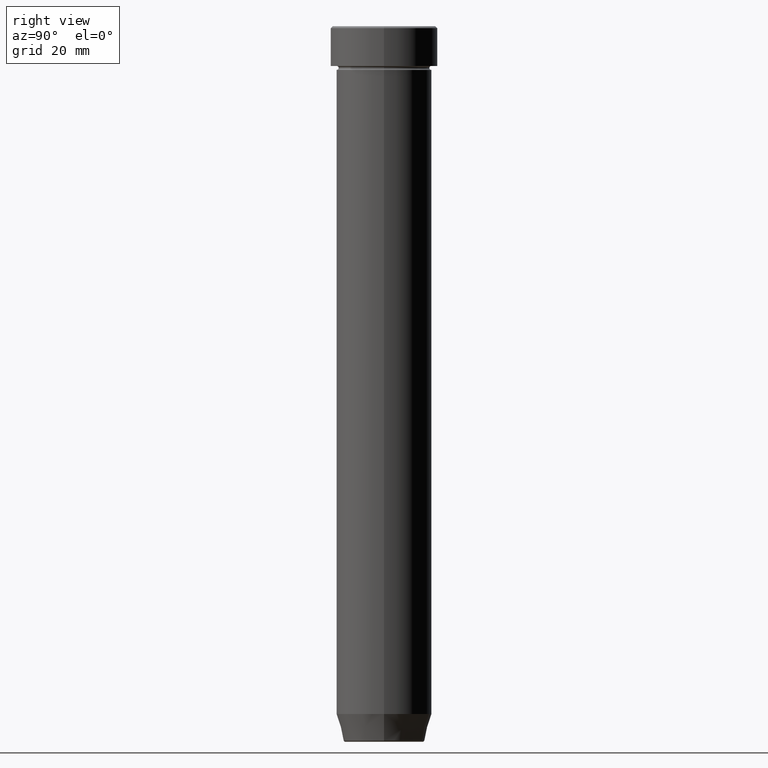
[diagram: clean part render]
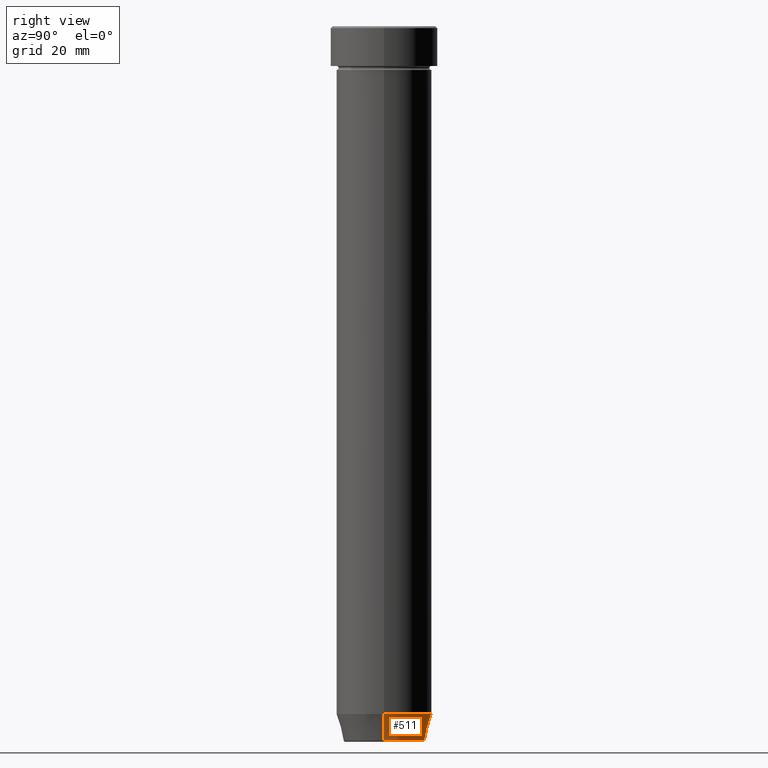
[diagram: same view with one face highlighted and labeled with its STEP entity id]
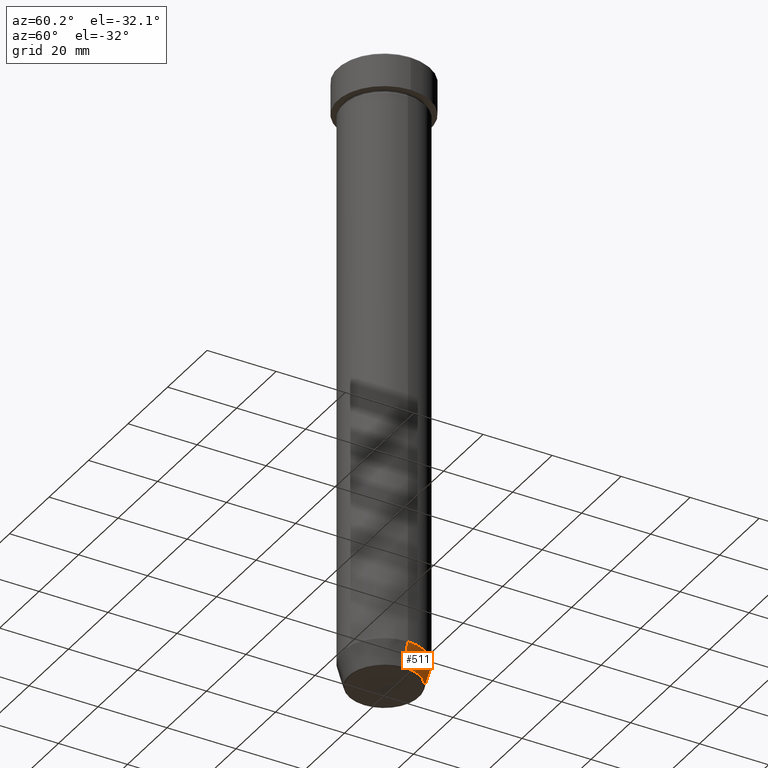
[diagram: same view with one face highlighted and labeled with its STEP entity id]
A machine part, right view. The second image highlights one B-rep face of the part: STEP entity #511.
A second angle (auxiliary view) of the same face is appended — the face is thin or edge-on in the first view.
In plain terms, the highlighted conical surface has half-angle 15 deg.
Its self-contained STEP definition (entity closure, byte-faithful):
#11 = FACE_OUTER_BOUND ( 'NONE', #301, .T. ) ;
#25 = ORIENTED_EDGE ( 'NONE', *, *, #413, .T. ) ;
#26 = AXIS2_PLACEMENT_3D ( 'NONE', #376, #390, #383 ) ;
#29 = EDGE_CURVE ( 'NONE', #521, #260, #471, .T. ) ;
#46 = CARTESIAN_POINT ( 'NONE',  ( 0.000000000000000000, 0.000000000000000000, -179.6294095225512422 ) ) ;
#65 = ORIENTED_EDGE ( 'NONE', *, *, #597, .T. ) ;
#69 = AXIS2_PLACEMENT_3D ( 'NONE', #444, #141, #447 ) ;
#77 = CARTESIAN_POINT ( 'NONE',  ( 10.22365507213718416, 0.000000000000000000, -179.6294095225512422 ) ) ;
#133 = CARTESIAN_POINT ( 'NONE',  ( -10.22365507213718416, 1.360806402472382153E-15, -179.6294095225512422 ) ) ;
#141 = DIRECTION ( 'NONE',  ( -0.000000000000000000, -0.000000000000000000, 1.000000000000000000 ) ) ;
#147 = CARTESIAN_POINT ( 'NONE',  ( -10.12435565298213369, 1.239875974385398152E-15, -180.0000000000000000 ) ) ;
#161 = CONICAL_SURFACE ( 'NONE', #26, 10.12435565298213369, 0.2617993877991502405 ) ;
#189 = DIRECTION ( 'NONE',  ( -0.2588190451025214611, 3.169619151431774186E-17, 0.9659258262890679791 ) ) ;
#223 = ORIENTED_EDGE ( 'NONE', *, *, #29, .F. ) ;
#260 = VERTEX_POINT ( 'NONE', #559 ) ;
#264 = VERTEX_POINT ( 'NONE', #331 ) ;
#269 = VECTOR ( 'NONE', #189, 1000.000000000000114 ) ;
#301 = EDGE_LOOP ( 'NONE', ( #65, #25, #556, #223 ) ) ;
#311 = DIRECTION ( 'NONE',  ( -1.000000000000000000, 0.000000000000000000, 0.000000000000000000 ) ) ;
#313 = LINE ( 'NONE', #147, #269 ) ;
#323 = DIRECTION ( 'NONE',  ( -0.000000000000000000, -0.000000000000000000, 1.000000000000000000 ) ) ;
#329 = CIRCLE ( 'NONE', #379, 10.22365507213718416 ) ;
#331 = CARTESIAN_POINT ( 'NONE',  ( -12.00000000000000000, 1.469576158976823947E-15, -173.0000000000000000 ) ) ;
#376 = CARTESIAN_POINT ( 'NONE',  ( 0.000000000000000000, 0.000000000000000000, -180.0000000000000000 ) ) ;
#379 = AXIS2_PLACEMENT_3D ( 'NONE', #46, #323, #311 ) ;
#383 = DIRECTION ( 'NONE',  ( 1.000000000000000000, 0.000000000000000000, 0.000000000000000000 ) ) ;
#390 = DIRECTION ( 'NONE',  ( -0.000000000000000000, -0.000000000000000000, 1.000000000000000000 ) ) ;
#392 = CARTESIAN_POINT ( 'NONE',  ( 10.12435565298213369, 0.000000000000000000, -180.0000000000000000 ) ) ;
#413 = EDGE_CURVE ( 'NONE', #519, #264, #313, .T. ) ;
#438 = EDGE_CURVE ( 'NONE', #260, #264, #452, .T. ) ;
#444 = CARTESIAN_POINT ( 'NONE',  ( 0.000000000000000000, 0.000000000000000000, -173.0000000000000000 ) ) ;
#447 = DIRECTION ( 'NONE',  ( 1.000000000000000000, 0.000000000000000000, 0.000000000000000000 ) ) ;
#452 = CIRCLE ( 'NONE', #69, 12.00000000000000000 ) ;
#471 = LINE ( 'NONE', #392, #508 ) ;
#475 = DIRECTION ( 'NONE',  ( 0.2588190451025214611, 0.000000000000000000, 0.9659258262890679791 ) ) ;
#508 = VECTOR ( 'NONE', #475, 1000.000000000000114 ) ;
#511 = ADVANCED_FACE ( 'NONE', ( #11 ), #161, .T. ) ;
#519 = VERTEX_POINT ( 'NONE', #133 ) ;
#521 = VERTEX_POINT ( 'NONE', #77 ) ;
#556 = ORIENTED_EDGE ( 'NONE', *, *, #438, .F. ) ;
#559 = CARTESIAN_POINT ( 'NONE',  ( 12.00000000000000000, 0.000000000000000000, -173.0000000000000000 ) ) ;
#597 = EDGE_CURVE ( 'NONE', #521, #519, #329, .T. ) ;